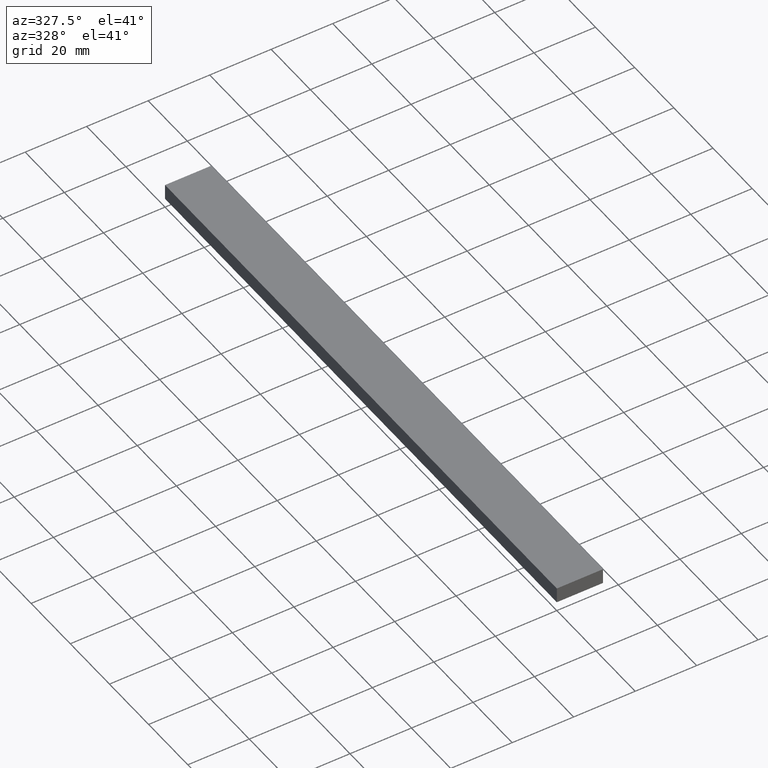
[diagram: clean part render]
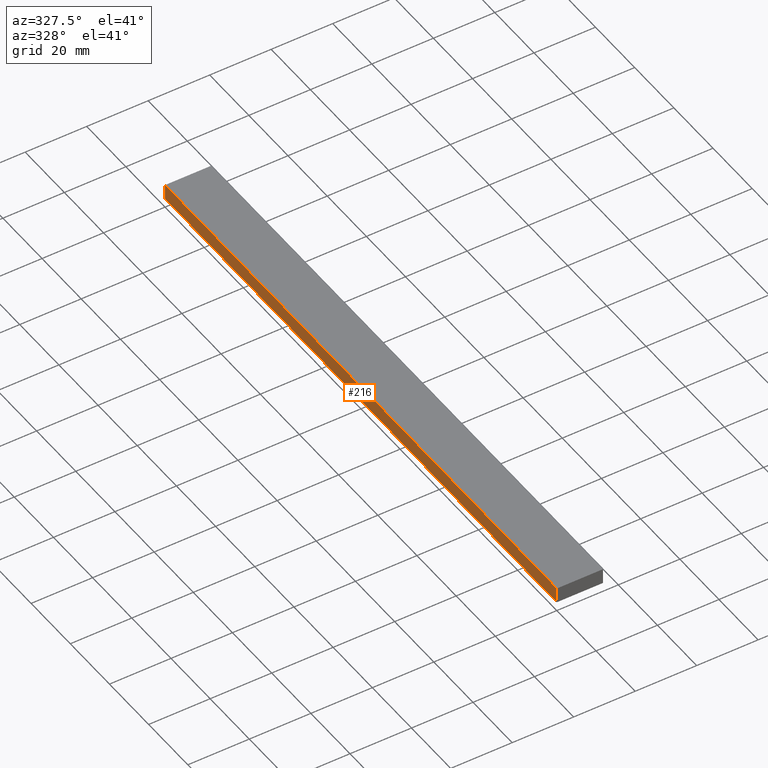
[diagram: same view with one face highlighted and labeled with its STEP entity id]
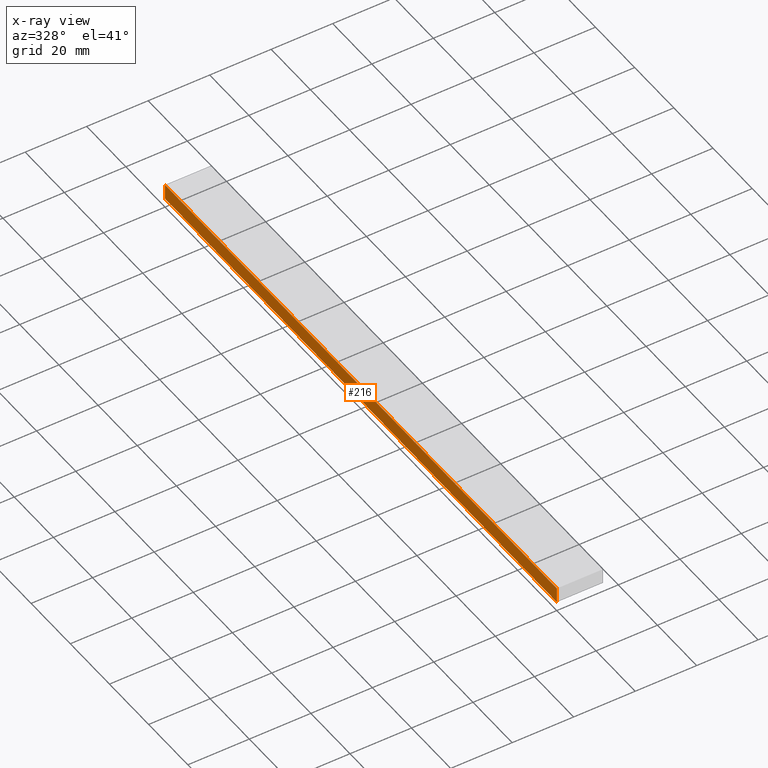
[diagram: x-ray of the same camera — body ghosted, the highlighted face saturated]
A machine part, auxiliary view. The second image highlights one B-rep face of the part: STEP entity #216.
The next image is the same camera in x-ray: the body ghosted, the highlighted face saturated — about 0% of this face is hidden behind the body in this view.
In plain terms, the highlighted planar face has unit normal (1, 0, 0).
Its self-contained STEP definition (entity closure, byte-faithful):
#3 = CARTESIAN_POINT ( 'NONE',  ( 0.0000000000000000000, 1000.000000000000000, 5.000000000000000000 ) ) ;
#7 = EDGE_CURVE ( 'NONE', #44, #79, #220, .T. ) ;
#20 = AXIS2_PLACEMENT_3D ( 'NONE', #112, #188, #197 ) ;
#24 = PLANE ( 'NONE',  #20 ) ;
#26 = DIRECTION ( 'NONE',  ( 0.0000000000000000000, -1.000000000000000000, 0.0000000000000000000 ) ) ;
#32 = EDGE_CURVE ( 'NONE', #56, #44, #90, .T. ) ;
#35 = VECTOR ( 'NONE', #182, 1000.000000000000000 ) ;
#44 = VERTEX_POINT ( 'NONE', #50 ) ;
#48 = ORIENTED_EDGE ( 'NONE', *, *, #73, .T. ) ;
#50 = CARTESIAN_POINT ( 'NONE',  ( 0.0000000000000000000, 200.0000000000000000, 5.000000000000000000 ) ) ;
#56 = VERTEX_POINT ( 'NONE', #147 ) ;
#61 = DIRECTION ( 'NONE',  ( 0.0000000000000000000, -1.000000000000000000, 0.0000000000000000000 ) ) ;
#67 = DIRECTION ( 'NONE',  ( 0.0000000000000000000, 0.0000000000000000000, 1.000000000000000000 ) ) ;
#73 = EDGE_CURVE ( 'NONE', #56, #84, #231, .T. ) ;
#74 = ORIENTED_EDGE ( 'NONE', *, *, #229, .T. ) ;
#77 = CARTESIAN_POINT ( 'NONE',  ( 0.0000000000000000000, 0.0000000000000000000, 0.0000000000000000000 ) ) ;
#79 = VERTEX_POINT ( 'NONE', #115 ) ;
#84 = VERTEX_POINT ( 'NONE', #108 ) ;
#89 = EDGE_LOOP ( 'NONE', ( #74, #105, #167, #48 ) ) ;
#90 = LINE ( 'NONE', #94, #92 ) ;
#92 = VECTOR ( 'NONE', #67, 1000.000000000000000 ) ;
#94 = CARTESIAN_POINT ( 'NONE',  ( 0.0000000000000000000, 200.0000000000000000, 0.0000000000000000000 ) ) ;
#105 = ORIENTED_EDGE ( 'NONE', *, *, #7, .F. ) ;
#108 = CARTESIAN_POINT ( 'NONE',  ( 0.0000000000000000000, 0.0000000000000000000, 0.0000000000000000000 ) ) ;
#109 = FACE_OUTER_BOUND ( 'NONE', #89, .T. ) ;
#112 = CARTESIAN_POINT ( 'NONE',  ( 0.0000000000000000000, 1000.000000000000000, 0.0000000000000000000 ) ) ;
#115 = CARTESIAN_POINT ( 'NONE',  ( 0.0000000000000000000, 0.0000000000000000000, 5.000000000000000000 ) ) ;
#140 = VECTOR ( 'NONE', #26, 1000.000000000000000 ) ;
#144 = CARTESIAN_POINT ( 'NONE',  ( 0.0000000000000000000, 1000.000000000000000, 0.0000000000000000000 ) ) ;
#147 = CARTESIAN_POINT ( 'NONE',  ( 0.0000000000000000000, 200.0000000000000000, 0.0000000000000000000 ) ) ;
#150 = LINE ( 'NONE', #77, #35 ) ;
#167 = ORIENTED_EDGE ( 'NONE', *, *, #32, .F. ) ;
#182 = DIRECTION ( 'NONE',  ( 0.0000000000000000000, 0.0000000000000000000, 1.000000000000000000 ) ) ;
#188 = DIRECTION ( 'NONE',  ( 1.000000000000000000, 0.0000000000000000000, 0.0000000000000000000 ) ) ;
#197 = DIRECTION ( 'NONE',  ( 0.0000000000000000000, 0.0000000000000000000, -1.000000000000000000 ) ) ;
#203 = VECTOR ( 'NONE', #61, 1000.000000000000000 ) ;
#216 = ADVANCED_FACE ( 'NONE', ( #109 ), #24, .F. ) ;
#220 = LINE ( 'NONE', #3, #140 ) ;
#229 = EDGE_CURVE ( 'NONE', #84, #79, #150, .T. ) ;
#231 = LINE ( 'NONE', #144, #203 ) ;